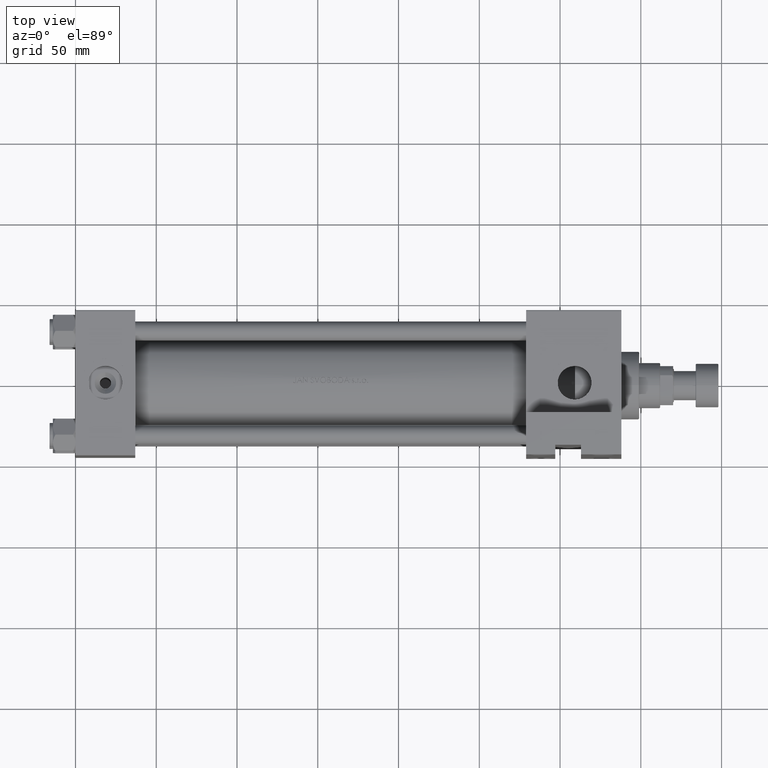
[diagram: clean part render]
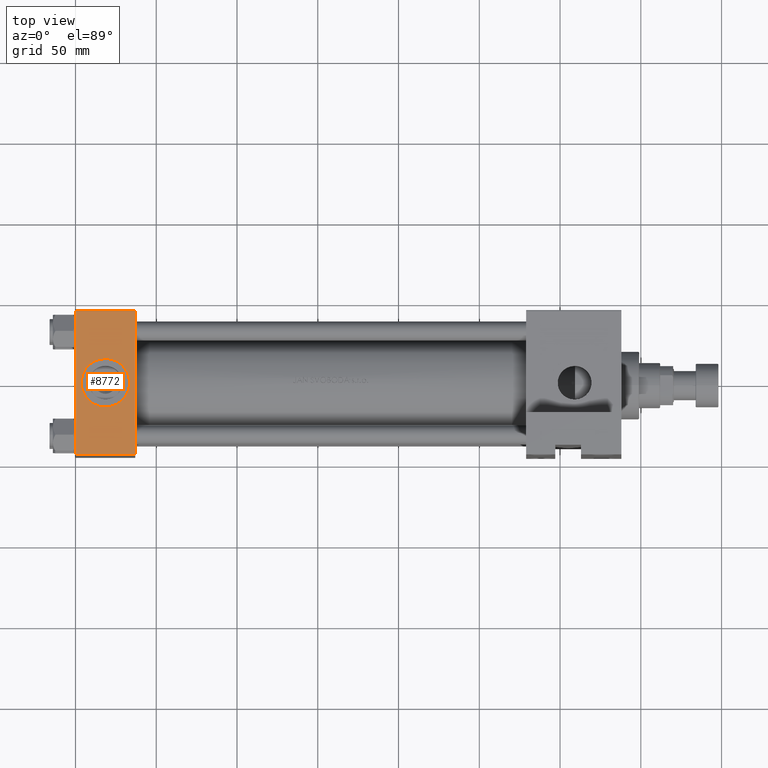
[diagram: same view with one face highlighted and labeled with its STEP entity id]
A machine part, top view. The second image highlights one B-rep face of the part: STEP entity #8772.
In plain terms, the highlighted planar face has unit normal (0, 0, -1).
Its self-contained STEP definition (entity closure, byte-faithful):
#58 = CARTESIAN_POINT ( 'NONE',  ( 0.000000000000000000, -45.00000000000000711, 45.00000000000000000 ) ) ;
#362 = EDGE_CURVE ( 'NONE', #17761, #8411, #4422, .T. ) ;
#363 = ORIENTED_EDGE ( 'NONE', *, *, #38634, .T. ) ;
#4422 = LINE ( 'NONE', #17108, #47060 ) ;
#4505 = EDGE_CURVE ( 'NONE', #49922, #17761, #35104, .T. ) ;
#7593 = DIRECTION ( 'NONE',  ( 0.000000000000000000, 0.000000000000000000, -1.000000000000000000 ) ) ;
#7831 = CARTESIAN_POINT ( 'NONE',  ( 18.50000000000000000, -45.00000000000000000, -3.469446951953614978E-15 ) ) ;
#8320 = CARTESIAN_POINT ( 'NONE',  ( 0.000000000000000000, -45.00000000000000000, -44.49999999999995737 ) ) ;
#8411 = VERTEX_POINT ( 'NONE', #31067 ) ;
#8772 = ADVANCED_FACE ( 'NONE', ( #21514, #18452 ), #41288, .F. ) ;
#8977 = VECTOR ( 'NONE', #38262, 1000.000000000000000 ) ;
#10164 = LINE ( 'NONE', #33537, #8977 ) ;
#12396 = DIRECTION ( 'NONE',  ( 0.000000000000000000, -1.000000000000000000, -8.673617379884036705E-17 ) ) ;
#12558 = CARTESIAN_POINT ( 'NONE',  ( 18.50000000000000355, -45.00000000000000000, 14.99999999999999822 ) ) ;
#12974 = VECTOR ( 'NONE', #15292, 1000.000000000000000 ) ;
#13143 = EDGE_CURVE ( 'NONE', #31948, #26870, #27661, .T. ) ;
#13461 = EDGE_LOOP ( 'NONE', ( #28699, #46038, #31659, #363 ) ) ;
#14470 = EDGE_LOOP ( 'NONE', ( #45787, #17764 ) ) ;
#15292 = DIRECTION ( 'NONE',  ( 0.000000000000000000, 7.709882115452476934E-17, -1.000000000000000000 ) ) ;
#16206 = CARTESIAN_POINT ( 'NONE',  ( 18.50000000000000000, -45.00000000000000000, -3.469446951953614978E-15 ) ) ;
#17108 = CARTESIAN_POINT ( 'NONE',  ( 37.00000000000000000, -45.00000000000000000, -44.49999999999998579 ) ) ;
#17761 = VERTEX_POINT ( 'NONE', #8320 ) ;
#17764 = ORIENTED_EDGE ( 'NONE', *, *, #36209, .F. ) ;
#18452 = FACE_OUTER_BOUND ( 'NONE', #13461, .T. ) ;
#18502 = AXIS2_PLACEMENT_3D ( 'NONE', #29125, #37233, #48896 ) ;
#21052 = CIRCLE ( 'NONE', #44555, 15.00000000000000178 ) ;
#21514 = FACE_BOUND ( 'NONE', #14470, .T. ) ;
#24098 = CARTESIAN_POINT ( 'NONE',  ( 18.50000000000000000, -45.00000000000000000, -15.00000000000000533 ) ) ;
#24737 = DIRECTION ( 'NONE',  ( 1.000000000000000000, 0.000000000000000000, 0.000000000000000000 ) ) ;
#24913 = EDGE_CURVE ( 'NONE', #49324, #8411, #28863, .T. ) ;
#26870 = VERTEX_POINT ( 'NONE', #12558 ) ;
#27661 = CIRCLE ( 'NONE', #43875, 15.00000000000000178 ) ;
#27904 = DIRECTION ( 'NONE',  ( 0.000000000000000000, 0.000000000000000000, -1.000000000000000000 ) ) ;
#28699 = ORIENTED_EDGE ( 'NONE', *, *, #4505, .T. ) ;
#28863 = LINE ( 'NONE', #39773, #37394 ) ;
#29125 = CARTESIAN_POINT ( 'NONE',  ( 37.00000000000000000, -45.00000000000000711, 45.00000000000000000 ) ) ;
#31067 = CARTESIAN_POINT ( 'NONE',  ( 37.00000000000000000, -45.00000000000000000, -44.49999999999995737 ) ) ;
#31659 = ORIENTED_EDGE ( 'NONE', *, *, #24913, .F. ) ;
#31948 = VERTEX_POINT ( 'NONE', #24098 ) ;
#33537 = CARTESIAN_POINT ( 'NONE',  ( 37.00000000000000000, -45.00000000000000711, 44.49999999999997158 ) ) ;
#34521 = DIRECTION ( 'NONE',  ( 0.000000000000000000, -1.000000000000000000, -8.673617379884036705E-17 ) ) ;
#35064 = CARTESIAN_POINT ( 'NONE',  ( 0.000000000000000000, -45.00000000000000711, 44.49999999999997158 ) ) ;
#35104 = LINE ( 'NONE', #58, #12974 ) ;
#36209 = EDGE_CURVE ( 'NONE', #26870, #31948, #21052, .T. ) ;
#37233 = DIRECTION ( 'NONE',  ( -0.000000000000000000, 1.000000000000000000, 7.709882115452478166E-17 ) ) ;
#37394 = VECTOR ( 'NONE', #40267, 1000.000000000000000 ) ;
#38262 = DIRECTION ( 'NONE',  ( -1.000000000000000000, 0.000000000000000000, 0.000000000000000000 ) ) ;
#38634 = EDGE_CURVE ( 'NONE', #49324, #49922, #10164, .T. ) ;
#39052 = CARTESIAN_POINT ( 'NONE',  ( 37.00000000000000000, -45.00000000000000711, 44.49999999999997158 ) ) ;
#39773 = CARTESIAN_POINT ( 'NONE',  ( 37.00000000000000000, -45.00000000000000711, 45.00000000000000000 ) ) ;
#40267 = DIRECTION ( 'NONE',  ( 0.000000000000000000, 7.709882115452476934E-17, -1.000000000000000000 ) ) ;
#41288 = PLANE ( 'NONE',  #18502 ) ;
#43875 = AXIS2_PLACEMENT_3D ( 'NONE', #16206, #12396, #27904 ) ;
#44555 = AXIS2_PLACEMENT_3D ( 'NONE', #7831, #34521, #7593 ) ;
#45787 = ORIENTED_EDGE ( 'NONE', *, *, #13143, .F. ) ;
#46038 = ORIENTED_EDGE ( 'NONE', *, *, #362, .T. ) ;
#47060 = VECTOR ( 'NONE', #24737, 1000.000000000000000 ) ;
#48896 = DIRECTION ( 'NONE',  ( 0.000000000000000000, -7.709882115452478166E-17, 1.000000000000000000 ) ) ;
#49324 = VERTEX_POINT ( 'NONE', #39052 ) ;
#49922 = VERTEX_POINT ( 'NONE', #35064 ) ;